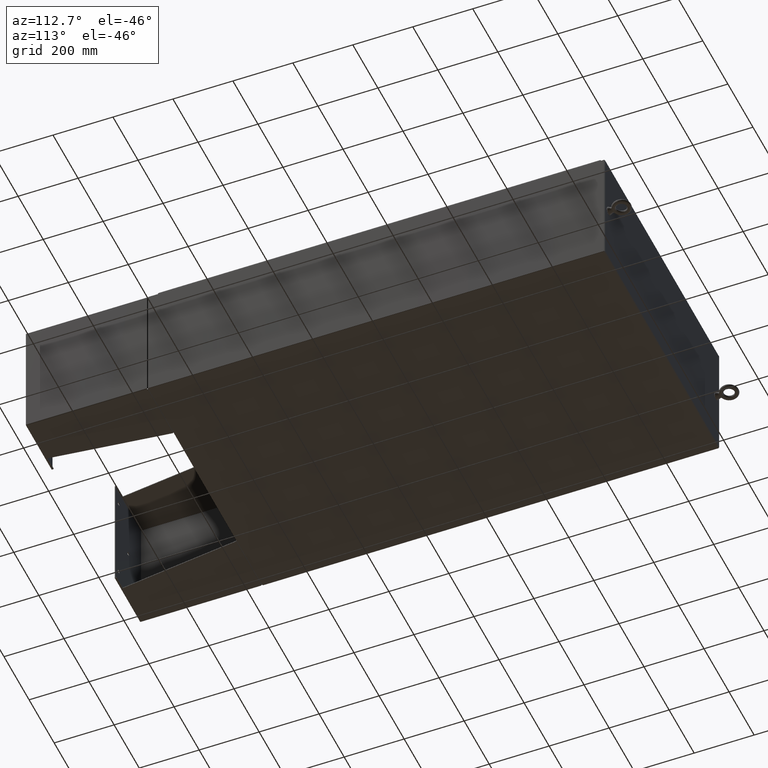
[diagram: clean part render]
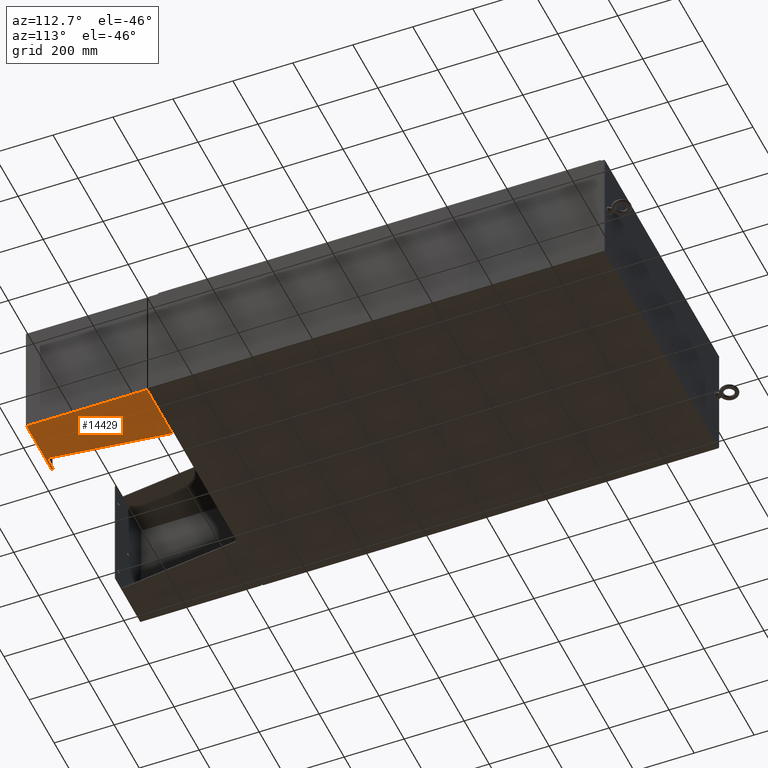
[diagram: same view with one face highlighted and labeled with its STEP entity id]
A machine part, auxiliary view. The second image highlights one B-rep face of the part: STEP entity #14429.
In plain terms, the highlighted planar face has unit normal (-0, 0, 1).
Its self-contained STEP definition (entity closure, byte-faithful):
#224 = LINE ( 'NONE', #42379, #24269 ) ;
#247 = ORIENTED_EDGE ( 'NONE', *, *, #17949, .T. ) ;
#498 = EDGE_CURVE ( 'NONE', #42871, #12006, #23016, .T. ) ;
#2733 = LINE ( 'NONE', #8528, #52560 ) ;
#3348 = FACE_OUTER_BOUND ( 'NONE', #39217, .T. ) ;
#8139 = PLANE ( 'NONE',  #56673 ) ;
#8528 = CARTESIAN_POINT ( 'NONE',  ( -8.000000000000026600, 8.000000000000001800, 8.000999999999997700 ) ) ;
#11132 = EDGE_CURVE ( 'NONE', #42871, #35682, #25113, .T. ) ;
#11607 = CARTESIAN_POINT ( 'NONE',  ( -8.000000000000026600, 8.000000000000001800, 8.000999999999997700 ) ) ;
#12006 = VERTEX_POINT ( 'NONE', #24601 ) ;
#12568 = DIRECTION ( 'NONE',  ( -3.550958521948298200E-015, 0.0000000000000000000, 1.000000000000000000 ) ) ;
#14429 = ADVANCED_FACE ( 'NONE', ( #3348 ), #8139, .F. ) ;
#14442 = DIRECTION ( 'NONE',  ( 1.000000000000000000, 0.0000000000000000000, 3.550958521948298200E-015 ) ) ;
#15429 = ORIENTED_EDGE ( 'NONE', *, *, #57705, .T. ) ;
#15768 = CARTESIAN_POINT ( 'NONE',  ( -7.999999999999999100, -7.999999999999999100, 0.03899999999999813300 ) ) ;
#17949 = EDGE_CURVE ( 'NONE', #30675, #28960, #224, .T. ) ;
#22534 = CARTESIAN_POINT ( 'NONE',  ( -8.000000000000012400, 7.857000000000001100, 8.000999999999997700 ) ) ;
#23016 = LINE ( 'NONE', #45958, #32885 ) ;
#24269 = VECTOR ( 'NONE', #42156, 39.37007874015748100 ) ;
#24601 = CARTESIAN_POINT ( 'NONE',  ( -8.000000000000026600, -7.999999999999999100, 8.000999999999997700 ) ) ;
#25113 = LINE ( 'NONE', #62316, #60807 ) ;
#27476 = ORIENTED_EDGE ( 'NONE', *, *, #11132, .F. ) ;
#28960 = VERTEX_POINT ( 'NONE', #53852 ) ;
#29672 = CARTESIAN_POINT ( 'NONE',  ( -8.000000000000026600, -7.750000000000000000, 8.001000000000006600 ) ) ;
#30675 = VERTEX_POINT ( 'NONE', #29672 ) ;
#32885 = VECTOR ( 'NONE', #12568, 39.37007874015748100 ) ;
#33415 = VECTOR ( 'NONE', #51543, 39.37007874015748100 ) ;
#34052 = CARTESIAN_POINT ( 'NONE',  ( -8.000000000000026600, 7.857000000000001100, 8.000999999999997700 ) ) ;
#35682 = VERTEX_POINT ( 'NONE', #48372 ) ;
#39046 = EDGE_CURVE ( 'NONE', #12006, #30675, #2733, .T. ) ;
#39217 = EDGE_LOOP ( 'NONE', ( #247, #15429, #39978, #27476, #46800, #46708 ) ) ;
#39978 = ORIENTED_EDGE ( 'NONE', *, *, #59650, .T. ) ;
#42156 = DIRECTION ( 'NONE',  ( 3.550958521948298200E-015, 0.0000000000000000000, -1.000000000000000000 ) ) ;
#42379 = CARTESIAN_POINT ( 'NONE',  ( -8.000000000000026600, -7.750000000000000000, 8.000999999999997700 ) ) ;
#42871 = VERTEX_POINT ( 'NONE', #15768 ) ;
#45958 = CARTESIAN_POINT ( 'NONE',  ( -8.000000000000026600, -7.999999999999999100, 8.000999999999997700 ) ) ;
#46101 = VERTEX_POINT ( 'NONE', #34052 ) ;
#46708 = ORIENTED_EDGE ( 'NONE', *, *, #39046, .T. ) ;
#46800 = ORIENTED_EDGE ( 'NONE', *, *, #498, .T. ) ;
#48372 = CARTESIAN_POINT ( 'NONE',  ( -8.000000000000012400, 7.857000000000001100, 0.03900000000000469100 ) ) ;
#51543 = DIRECTION ( 'NONE',  ( 0.0000000000000000000, 0.0000000000000000000, -1.000000000000000000 ) ) ;
#51846 = VECTOR ( 'NONE', #58131, 39.37007874015748100 ) ;
#52560 = VECTOR ( 'NONE', #61821, 39.37007874015748100 ) ;
#53218 = CARTESIAN_POINT ( 'NONE',  ( -8.000000000000019500, -7.749999999999999100, 6.052216497445926700 ) ) ;
#53359 = DIRECTION ( 'NONE',  ( 3.550958521948298200E-015, 0.0000000000000000000, -1.000000000000000000 ) ) ;
#53852 = CARTESIAN_POINT ( 'NONE',  ( -8.000000000000019500, -7.750000000000000000, 6.052216497445926700 ) ) ;
#54961 = LINE ( 'NONE', #53218, #51846 ) ;
#56673 = AXIS2_PLACEMENT_3D ( 'NONE', #11607, #14442, #53359 ) ;
#57705 = EDGE_CURVE ( 'NONE', #28960, #46101, #54961, .T. ) ;
#58131 = DIRECTION ( 'NONE',  ( -4.399772607369800400E-016, 0.9922942345449394800, 0.1239038017531047900 ) ) ;
#58488 = DIRECTION ( 'NONE',  ( 0.0000000000000000000, 1.000000000000000000, 0.0000000000000000000 ) ) ;
#59226 = LINE ( 'NONE', #22534, #33415 ) ;
#59650 = EDGE_CURVE ( 'NONE', #46101, #35682, #59226, .T. ) ;
#60807 = VECTOR ( 'NONE', #58488, 39.37007874015748100 ) ;
#61821 = DIRECTION ( 'NONE',  ( 0.0000000000000000000, 1.000000000000000000, 0.0000000000000000000 ) ) ;
#62316 = CARTESIAN_POINT ( 'NONE',  ( -7.999999999999999100, 8.000000000000001800, 0.03899999999999923000 ) ) ;